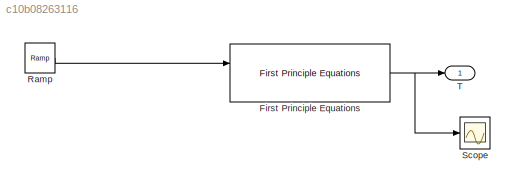
MODEL slx_c10b08263116
KIND model
BLOCK [Reference] First Principle Equations  REF=SLDCMotors_Lib/First Principle Equations
  Kemf = Dm1
  Km = T1
  L = H1
  Ports = [2, 1]
  R = R1
  SourceBlock = SLDCMotors_Lib/First Principle Equations
  SourceType = DC Motor - First Principles
BLOCK [Reference] Ramp  REF=simulink/Sources/Ramp
  Ports = [0, 1]
  SourceBlock = simulink/Sources/Ramp
  SourceType = Ramp
  VectorParams1D = on
  X0 = 0
  slope = 1
  start = 0.2
BLOCK [Scope] Scope
  Floating = off
  NumInputPorts = 1
  Ports = [1]
  ShowLegends = off
  ZoomMode = yonly
BLOCK [Outport] T
  IconDisplay = Port number
NET First Principle Equations:1 -> Scope:1, T:1
LINE Ramp:1 -> First Principle Equations:1
note: NET lines group one-source signal fan-out (src -> all destinations, sorted); 1:1 wires keep LINE
